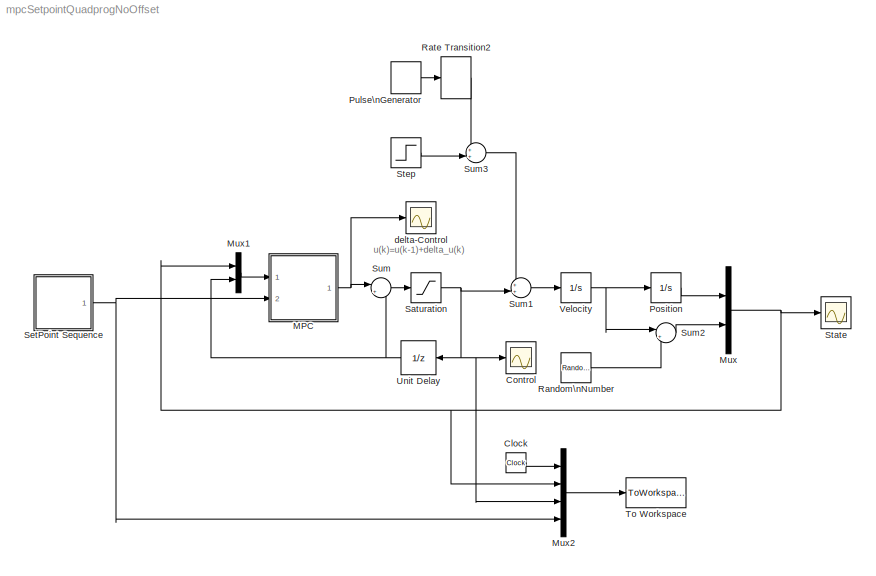
MODEL mpcSetpointQuadprogNoOffset
KIND model
BLOCK [Clock] Clock
  SID = 340
BLOCK [Scope] Control
  DataFormat = StructureWithTime
  Floating = off
  NumInputPorts = 1
  Ports = [1]
  SID = 8
  SampleTime = 0
  SaveName = ScopeData1
  ShowLegends = off
  TimeRange = 240
  YMax = 0.35
  YMin = -0.4
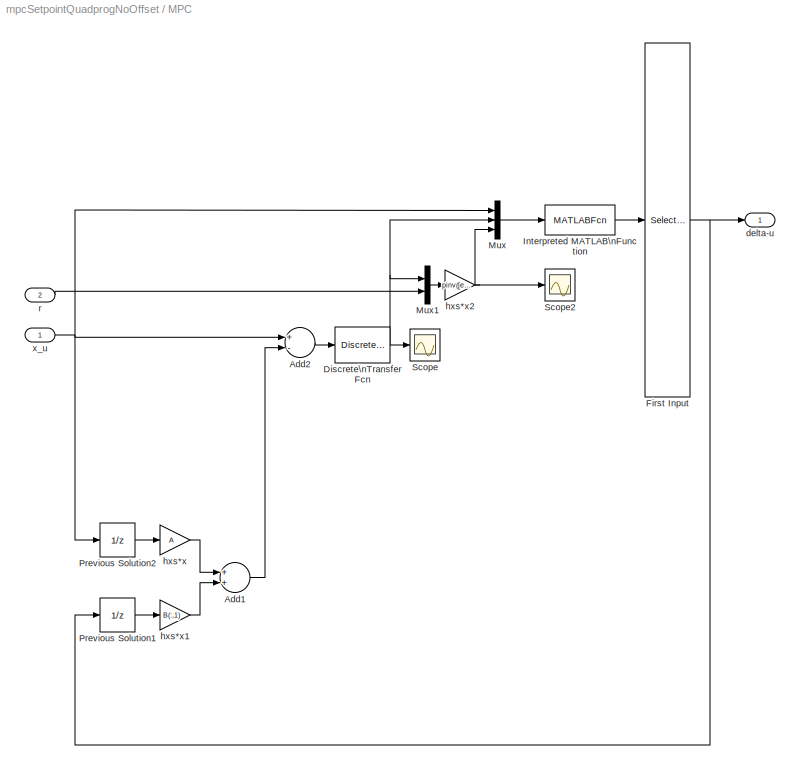
BLOCK [SubSystem] MPC
  FunctionWithSeparateData = off
  MaskHideContents = off
  MinAlgLoopOccurrences = off
  Opaque = off
  Ports = [2, 1]
  PropExecContextOutsideSubsystem = off
  RTWSystemCode = Auto
  RequestExecContextInheritance = off
  SID = 202
  SystemSampleTime = dt
  TreatAsAtomicUnit = on
BLOCK [Sum] MPC/Add1
  InputSameDT = off
  OutDataTypeStr = Inherit: Inherit via internal rule
  Ports = [2, 1]
  SID = 322
  SaturateOnIntegerOverflow = off
BLOCK [Sum] MPC/Add2
  InputSameDT = off
  Inputs = +-
  OutDataTypeStr = Inherit: Inherit via internal rule
  Ports = [2, 1]
  SID = 348
  SaturateOnIntegerOverflow = off
BLOCK [DiscreteTransferFcn] MPC/Discrete\nTransfer Fcn
  Denominator = [1 -0.5]
  InputPortMap = u0
  Numerator = [0.5]
  Ports = [1, 1]
  SID = 373
BLOCK [Selector] MPC/First Input
  IndexOptions = Index vector (dialog)
  Indices = 1
  InputPortWidth = T*(n+m)
  OutputSizes = 1
  Ports = [1, 1]
  SID = 204
BLOCK [MATLABFcn] MPC/Interpreted MATLAB\nFunction
  MATLABFcn = quadprog(2*H,g+gt*u(7:9),P,hx*u(1:3)+hc,C,b+bx*u(1:3)+bd*u(4:6),[],[],[],qpopts)
  Ports = [1, 1]
  SID = 328
BLOCK [Mux] MPC/Mux
  DisplayOption = bar
  Inputs = 3
  Ports = [3, 1]
  SID = 352
BLOCK [Mux] MPC/Mux1
  DisplayOption = bar
  Inputs = 2
  Ports = [2, 1]
  SID = 358
BLOCK [UnitDelay] MPC/Previous Solution1
  SID = 346
  SampleTime = -1
BLOCK [UnitDelay] MPC/Previous Solution2
  SID = 344
  SampleTime = -1
  X0 = [0 0 0]
BLOCK [Scope] MPC/Scope
  DataFormat = StructureWithTime
  Floating = off
  NumInputPorts = 1
  Ports = [1]
  SID = 350
  SampleTime = 0
  SaveName = ScopeData3
  ShowLegends = off
  YMax = 0.00275
  YMin = 0
BLOCK [Scope] MPC/Scope2
  DataFormat = StructureWithTime
  Floating = off
  NumInputPorts = 1
  Ports = [1]
  SID = 359
  SampleTime = 0
  SaveName = ScopeData5
  ShowLegends = off
  YMax = 0.00275
  YMin = 0
BLOCK [Outport] MPC/delta-u
  IconDisplay = Port number
  SID = 208
BLOCK [Gain] MPC/hxs*x
  Gain = A
  Multiplication = Matrix(K*u)
  OutDataTypeStr = Inherit: Inherit via internal rule
  ParamDataTypeStr = Inherit: Inherit via internal rule
  SID = 324
  SaturateOnIntegerOverflow = off
BLOCK [Gain] MPC/hxs*x1
  Gain = B(:,1)
  Multiplication = Matrix(K*u)
  OutDataTypeStr = Inherit: Inherit via internal rule
  ParamDataTypeStr = Inherit: Inherit via internal rule
  SID = 347
  SaturateOnIntegerOverflow = off
BLOCK [Gain] MPC/hxs*x2
  Gain = pinv([eye(3)-A; 1 0 0])
  Multiplication = Matrix(K*u)
  OutDataTypeStr = Inherit: Inherit via internal rule
  ParamDataTypeStr = Inherit: Inherit via internal rule
  SID = 356
  SaturateOnIntegerOverflow = off
BLOCK [Inport] MPC/r
  IconDisplay = Port number
  Port = 2
  SID = 357
BLOCK [Inport] MPC/x_u
  IconDisplay = Port number
  SID = 203
BLOCK [Mux] Mux
  DisplayOption = bar
  Inputs = 2
  Ports = [2, 1]
  SID = 3
BLOCK [Mux] Mux1
  DisplayOption = bar
  Inputs = 2
  Ports = [2, 1]
  SID = 89
BLOCK [Mux] Mux2
  DisplayOption = bar
  Ports = [4, 1]
  SID = 341
BLOCK [Integrator] Position
  Ports = [1, 1]
  SID = 2
BLOCK [DiscretePulseGenerator] Pulse\nGenerator
  Amplitude = 0.1
  Period = 200
  PhaseDelay = 101
  Ports = [0, 1]
  PulseType = Time based
  SID = 371
BLOCK [RandomNumber] Random\nNumber
  SID = 369
  SampleTime = dt
  Variance = 0.000000001*0
BLOCK [RateTransition] Rate Transition2
  SID = 366
BLOCK [Saturate] Saturation
  InputPortMap = u0
  LowerLimit = -0.0999
  Ports = [1, 1]
  SID = 372
  UpperLimit = 0.0999
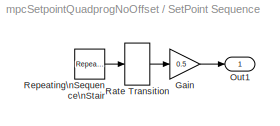
BLOCK [SubSystem] SetPoint Sequence
  FunctionWithSeparateData = off
  MaskHideContents = off
  MinAlgLoopOccurrences = off
  Opaque = off
  Ports = [0, 1]
  PropExecContextOutsideSubsystem = off
  RTWSystemCode = Auto
  RequestExecContextInheritance = off
  SID = 360
BLOCK [Gain] SetPoint Sequence/Gain
  Gain = 0.5
  OutDataTypeStr = Inherit: Inherit via internal rule
  ParamDataTypeStr = Inherit: Inherit via internal rule
  SID = 361
  SaturateOnIntegerOverflow = off
BLOCK [Outport] SetPoint Sequence/Out1
  IconDisplay = Port number
  SID = 364
BLOCK [RateTransition] SetPoint Sequence/Rate Transition
  SID = 362
BLOCK [Reference] SetPoint Sequence/Repeating\nSequence\nStair  REF=simulink/Sources/Repeating\nSequence\nStair
  ConRadixGroup = Best Precision: Vector-wise
  LockScale = off
  OutDataType = double
  OutDataTypeStr = double
  OutMax = []
  OutMin = []
  OutScaling = 2^-12
  OutValues = [1 0 2 0 3 0 4 0 5 0 6 0].'
  OutputDataTypeScalingMode = Specify via dialog
  Ports = [0, 1]
  SID = 363
  SourceBlock = simulink/Sources/Repeating\nSequence\nStair
  SourceType = Repeating Sequence Stair
  tsamp = 20
BLOCK [Scope] State
  DataFormat = StructureWithTime
  Floating = off
  NumInputPorts = 1
  Ports = [1]
  SID = 7
  SampleTime = 0
  ShowLegends = off
  TimeRange = 200
  YMax = 1
  YMin = -0.3
  ZoomMode = yonly
BLOCK [Step] Step
  After = 0.01*0
  SID = 367
  SampleTime = 0
  Time = 100
BLOCK [Sum] Sum
  IconShape = round
  InputSameDT = off
  Inputs = |++
  OutDataTypeStr = Inherit: Inherit via internal rule
  Ports = [2, 1]
  SID = 87
  SaturateOnIntegerOverflow = off
BLOCK [Sum] Sum1
  IconShape = round
  InputSameDT = off
  Inputs = ++|
  OutDataTypeStr = Inherit: Inherit via internal rule
  Ports = [2, 1]
  SID = 325
  SaturateOnIntegerOverflow = off
BLOCK [Sum] Sum2
  IconShape = round
  InputSameDT = off
  Inputs = |++
  OutDataTypeStr = Inherit: Inherit via internal rule
  Ports = [2, 1]
  SID = 370
  SaturateOnIntegerOverflow = off
BLOCK [Sum] Sum3
  IconShape = round
  InputSameDT = off
  Inputs = ++|
  OutDataTypeStr = Inherit: Inherit via internal rule
  Ports = [2, 1]
  SID = 368
  SaturateOnIntegerOverflow = off
BLOCK [ToWorkspace] To Workspace
  MaxDataPoints = inf
  Ports = [1]
  SID = 342
  SampleTime = -1
  VariableName = simout
BLOCK [UnitDelay] Unit Delay
  SID = 88
  SampleTime = dt
BLOCK [Integrator] Velocity
  Ports = [1, 1]
  SID = 1
BLOCK [Scope] delta-Control
  DataFormat = StructureWithTime
  Floating = off
  NumInputPorts = 1
  Ports = [1]
  SID = 307
  SampleTime = 0
  SaveName = ScopeData2
  ShowLegends = off
  TimeRange = 240
  YMax = 0.35
  YMin = -0.4
ANNOTATION (root): u(k)=u(k-1)+delta_u(k)
LINE Clock:1 -> Mux2:1
LINE MPC/Add1:1 -> MPC/Add2:2
LINE MPC/Add2:1 -> MPC/Discrete\nTransfer Fcn:1
NET MPC/Discrete\nTransfer Fcn:1 -> MPC/Mux1:1, MPC/Mux:2, MPC/Scope:1
NET MPC/First Input:1 -> MPC/Previous Solution1:1, MPC/delta-u:1
LINE MPC/Interpreted MATLAB\nFunction:1 -> MPC/First Input:1
LINE MPC/Mux1:1 -> MPC/hxs*x2:1
LINE MPC/Mux:1 -> MPC/Interpreted MATLAB\nFunction:1
LINE MPC/Previous Solution1:1 -> MPC/hxs*x1:1
LINE MPC/Previous Solution2:1 -> MPC/hxs*x:1
LINE MPC/hxs*x1:1 -> MPC/Add1:2
NET MPC/hxs*x2:1 -> MPC/Mux:3, MPC/Scope2:1
LINE MPC/hxs*x:1 -> MPC/Add1:1
LINE MPC/r:1 -> MPC/Mux1:2
NET MPC/x_u:1 -> MPC/Add2:1, MPC/Mux:1, MPC/Previous Solution2:1
NET MPC:1 -> Sum:1, delta-Control:1
LINE Mux1:1 -> MPC:1
LINE Mux2:1 -> To Workspace:1
NET Mux:1 -> Mux1:1, Mux2:2, State:1
LINE Position:1 -> Mux:1
LINE Pulse\nGenerator:1 -> Rate Transition2:1
LINE Random\nNumber:1 -> Sum2:2
LINE Rate Transition2:1 -> Sum3:1
NET Saturation:1 -> Control:1, Mux2:3, Sum1:2, Unit Delay:1
LINE SetPoint Sequence/Gain:1 -> SetPoint Sequence/Out1:1
LINE SetPoint Sequence/Rate Transition:1 -> SetPoint Sequence/Gain:1
LINE SetPoint Sequence/Repeating\nSequence\nStair:1 -> SetPoint Sequence/Rate Transition:1
NET SetPoint Sequence:1 -> MPC:2, Mux2:4
LINE Step:1 -> Sum3:2
LINE Sum1:1 -> Velocity:1
LINE Sum2:1 -> Mux:2
LINE Sum3:1 -> Sum1:1
LINE Sum:1 -> Saturation:1
NET Unit Delay:1 -> Mux1:2, Sum:2
NET Velocity:1 -> Position:1, Sum2:1
note: NET lines group one-source signal fan-out (src -> all destinations, sorted); 1:1 wires keep LINE
